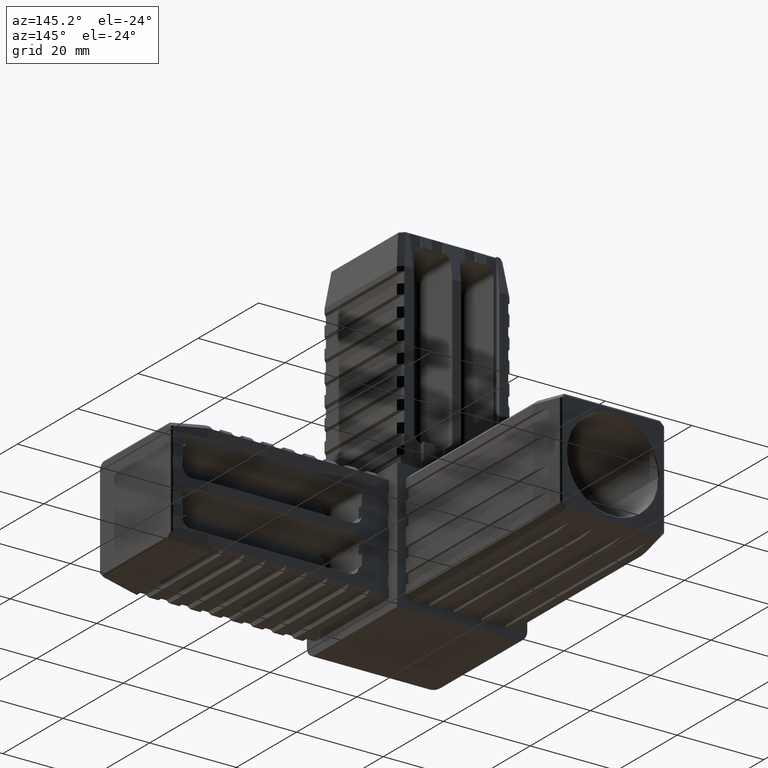
[diagram: clean part render]
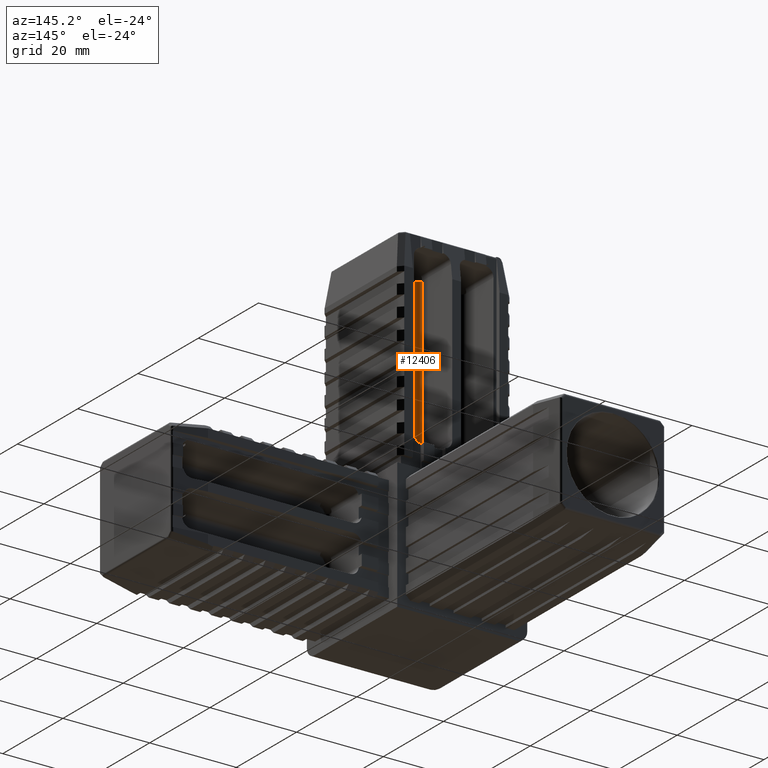
[diagram: same view with one face highlighted and labeled with its STEP entity id]
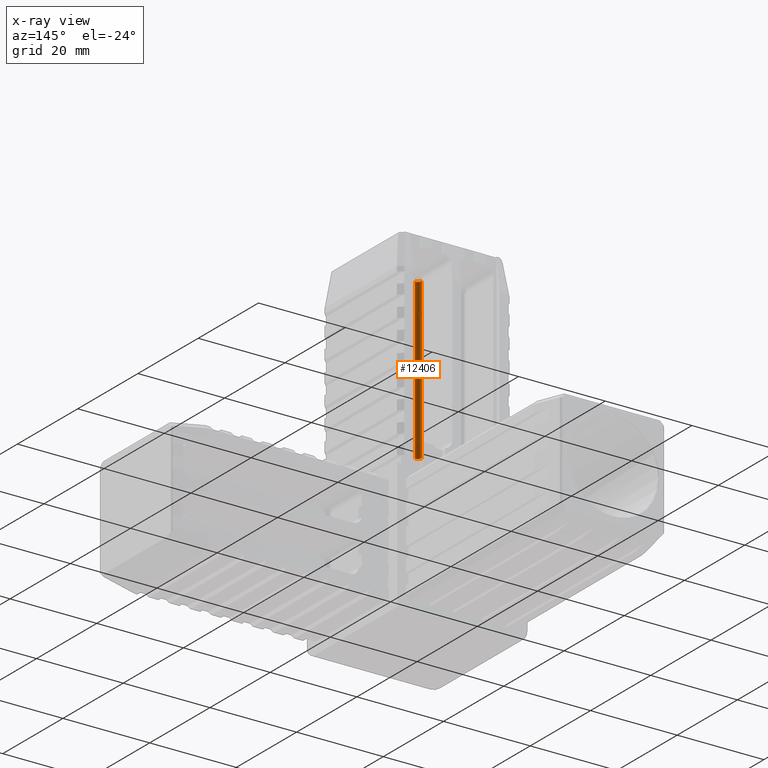
[diagram: x-ray of the same camera — body ghosted, the highlighted face saturated]
A machine part, auxiliary view. The second image highlights one B-rep face of the part: STEP entity #12406.
The next image is the same camera in x-ray: the body ghosted, the highlighted face saturated — about 0% of this face is hidden behind the body in this view.
In plain terms, the highlighted cylindrical surface (edge-blend (fillet) strip) has radius 1 mm, axis along (-0, 0, -1).
Its self-contained STEP definition (entity closure, byte-faithful):
#187=CIRCLE('',#13278,1.);
#200=CIRCLE('',#13294,1.);
#1238=FACE_OUTER_BOUND('',#1929,.T.);
#1929=EDGE_LOOP('',(#10208,#10209,#10210,#10211));
#3375=LINE('',#19770,#4865);
#3376=LINE('',#19771,#4866);
#4865=VECTOR('',#15888,10.);
#4866=VECTOR('',#15889,10.);
#6114=VERTEX_POINT('',#19699);
#6115=VERTEX_POINT('',#19700);
#6129=VERTEX_POINT('',#19754);
#6130=VERTEX_POINT('',#19756);
#7669=EDGE_CURVE('',#6114,#6115,#187,.T.);
#7689=EDGE_CURVE('',#6130,#6129,#200,.T.);
#7696=EDGE_CURVE('',#6129,#6114,#3375,.T.);
#7697=EDGE_CURVE('',#6115,#6130,#3376,.T.);
#10208=ORIENTED_EDGE('',*,*,#7689,.T.);
#10209=ORIENTED_EDGE('',*,*,#7696,.T.);
#10210=ORIENTED_EDGE('',*,*,#7669,.T.);
#10211=ORIENTED_EDGE('',*,*,#7697,.T.);
#11988=CYLINDRICAL_SURFACE('',#13299,1.);
#12406=ADVANCED_FACE('',(#1238),#11988,.F.);
#13278=AXIS2_PLACEMENT_3D('',#19701,#15834,#15835);
#13294=AXIS2_PLACEMENT_3D('',#19757,#15873,#15874);
#13299=AXIS2_PLACEMENT_3D('',#19769,#15886,#15887);
#15834=DIRECTION('center_axis',(0.,0.,1.));
#15835=DIRECTION('ref_axis',(-1.,0.,0.));
#15873=DIRECTION('center_axis',(0.,0.,-1.));
#15874=DIRECTION('ref_axis',(0.,-1.,0.));
#15886=DIRECTION('center_axis',(-1.77156000001559E-16,0.,-1.));
#15887=DIRECTION('ref_axis',(-0.707106781186548,-0.707106781186548,0.));
#15888=DIRECTION('',(1.77156000001559E-16,0.,1.));
#15889=DIRECTION('',(-1.77156000001559E-16,0.,-1.));
#19699=CARTESIAN_POINT('',(0.917000000000006,3.,60.519));
#19700=CARTESIAN_POINT('',(1.91700000000001,2.,60.519));
#19701=CARTESIAN_POINT('Origin',(1.91700000000001,3.,60.519));
#19754=CARTESIAN_POINT('',(0.917,3.,23.784));
#19756=CARTESIAN_POINT('',(1.917,2.,23.784));
#19757=CARTESIAN_POINT('Origin',(1.917,3.,23.784));
#19769=CARTESIAN_POINT('Origin',(1.917,3.,52.33525));
#19770=CARTESIAN_POINT('',(0.917000000000005,3.,52.33525));
#19771=CARTESIAN_POINT('',(1.917,2.,52.33525));